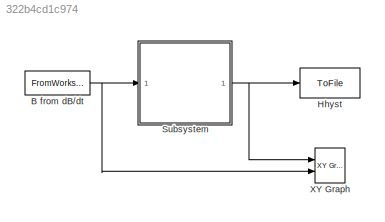
MODEL slx_322b4cd1c974
KIND model
CONFIG AbsTol = auto
CONFIG EnableMultiTasking = off
CONFIG FixedStep = step
CONFIG MaxStep = auto
CONFIG MinStep = auto
CONFIG RelTol = 1e-3
CONFIG SampleTimeConstraint = Unconstrained
CONFIG SolverName = FixedStepAuto
CONFIG StartTime = Tstart
CONFIG StopTime = Tsim
BLOCK [FromWorkspace] B from dB//dt 
  OutDataTypeStr = double
  VariableName = Binput
BLOCK [ToFile] Hhyst
  Filename = Hout.mat
  MatrixName = Hsim
  Ports = [1]
  SampleTime = 1
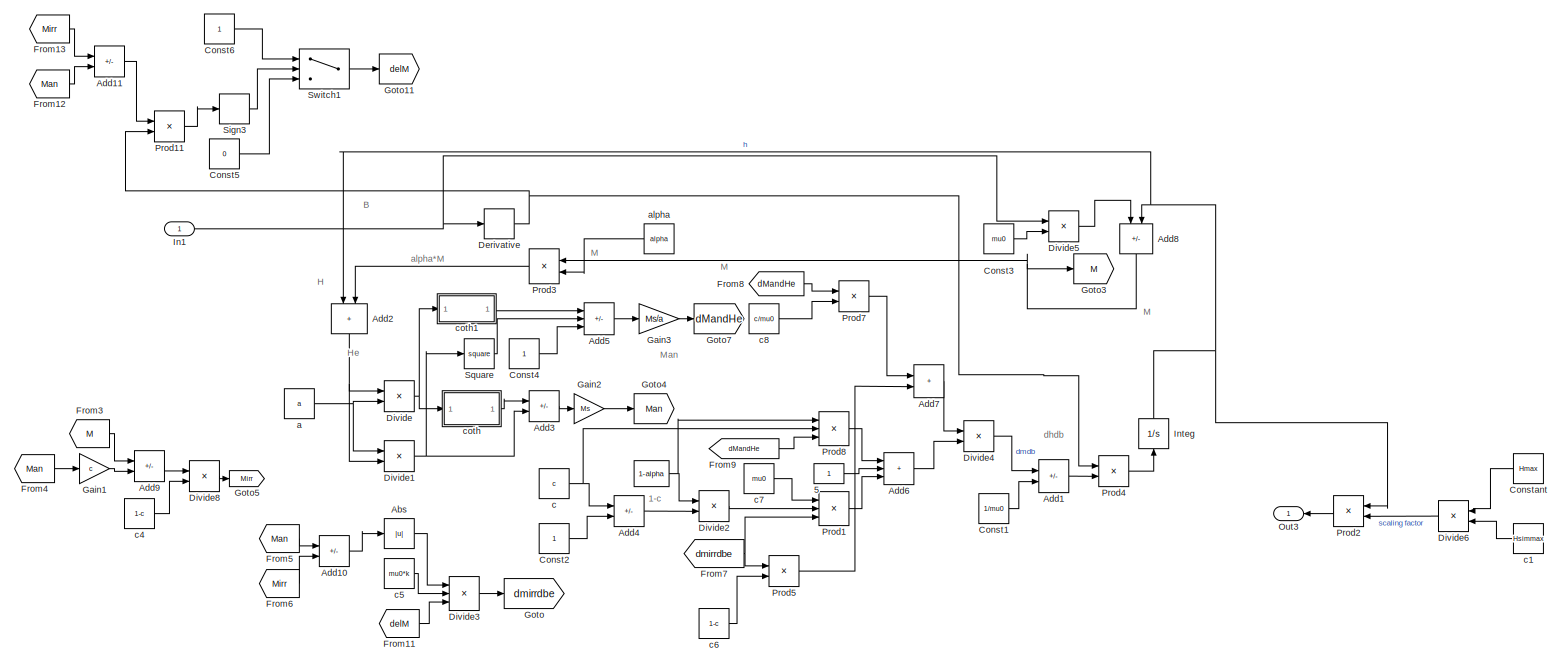
[diagram: Subsystem - part 1/1, most of the canvas]
BLOCK [SubSystem] Subsystem
  Ports = [1, 1]
  RequestExecContextInheritance = off
BLOCK [Constant] Subsystem/ 
  Value = 1-alpha
BLOCK [Constant] Subsystem/5
BLOCK [Abs] Subsystem/Abs
  SaturateOnIntegerOverflow = off
BLOCK [Sum] Subsystem/Add1
  IconShape = rectangular
  Inputs = -+
  Ports = [2, 1]
BLOCK [Sum] Subsystem/Add10
  IconShape = rectangular
  Inputs = +-
  Ports = [2, 1]
BLOCK [Sum] Subsystem/Add11
  IconShape = rectangular
  Inputs = -+
  Ports = [2, 1]
BLOCK [Sum] Subsystem/Add2
  IconShape = rectangular
  NameLocation = left
  Ports = [2, 1]
BLOCK [Sum] Subsystem/Add3
  IconShape = rectangular
  Inputs = +-
  Ports = [2, 1]
BLOCK [Sum] Subsystem/Add4
  IconShape = rectangular
  Inputs = -+
  Ports = [2, 1]
BLOCK [Sum] Subsystem/Add5
  IconShape = rectangular
  Inputs = -++
  Ports = [3, 1]
BLOCK [Sum] Subsystem/Add6
  IconShape = rectangular
  Inputs = +++
  Ports = [3, 1]
BLOCK [Sum] Subsystem/Add7
  IconShape = rectangular
  Ports = [2, 1]
BLOCK [Sum] Subsystem/Add8
  IconShape = rectangular
  Inputs = +-
  NameLocation = left
  Ports = [2, 1]
BLOCK [Sum] Subsystem/Add9
  IconShape = rectangular
  Inputs = +-
  Ports = [2, 1]
BLOCK [Constant] Subsystem/Const1
  Value = 1/mu0
BLOCK [Constant] Subsystem/Const2
BLOCK [Constant] Subsystem/Const3
  Value = mu0
BLOCK [Constant] Subsystem/Const4
BLOCK [Constant] Subsystem/Const5
  Value = 0
BLOCK [Constant] Subsystem/Const6
BLOCK [Constant] Subsystem/Constant
  NameLocation = top
  Value = Hmax
BLOCK [Derivative] Subsystem/Derivative
BLOCK [Product] Subsystem/Divide
  Inputs = */
  Ports = [2, 1]
BLOCK [Product] Subsystem/Divide1
  Inputs = */
  Ports = [2, 1]
BLOCK [Product] Subsystem/Divide2
  Inputs = **
  Ports = [2, 1]
BLOCK [Product] Subsystem/Divide3
  Inputs = */*
  Ports = [3, 1]
BLOCK [Product] Subsystem/Divide4
  Inputs = */
  Ports = [2, 1]
BLOCK [Product] Subsystem/Divide5
  Inputs = */
  Ports = [2, 1]
BLOCK [Product] Subsystem/Divide6
  Inputs = */
  NameLocation = top
  Ports = [2, 1]
BLOCK [Product] Subsystem/Divide8
  Inputs = */
  Ports = [2, 1]
BLOCK [From] Subsystem/From11
  GotoTag = delM
BLOCK [From] Subsystem/From12
  GotoTag = Man
BLOCK [From] Subsystem/From13
  GotoTag = Mirr
BLOCK [From] Subsystem/From3
  GotoTag = M
BLOCK [From] Subsystem/From4
  GotoTag = Man
BLOCK [From] Subsystem/From5
  GotoTag = Man
BLOCK [From] Subsystem/From6
  GotoTag = Mirr
BLOCK [From] Subsystem/From7
  GotoTag = dmirrdbe
BLOCK [From] Subsystem/From8
  GotoTag = dMandHe
BLOCK [From] Subsystem/From9
  GotoTag = dMandHe
BLOCK [Gain] Subsystem/Gain1
  Gain = c
BLOCK [Gain] Subsystem/Gain2
  Gain = Ms
BLOCK [Gain] Subsystem/Gain3
  Gain = Ms/a
BLOCK [Goto] Subsystem/Goto
  GotoTag = dmirrdbe
BLOCK [Goto] Subsystem/Goto11
  GotoTag = delM
BLOCK [Goto] Subsystem/Goto3
  GotoTag = M
BLOCK [Goto] Subsystem/Goto4
  GotoTag = Man
BLOCK [Goto] Subsystem/Goto5
  GotoTag = Mirr
BLOCK [Goto] Subsystem/Goto7
  GotoTag = dMandHe
BLOCK [Inport] Subsystem/In1
BLOCK [Integrator] Subsystem/Integ
  NameLocation = right
  Ports = [1, 1]
BLOCK [Outport] Subsystem/Out3
  NameLocation = top
BLOCK [Product] Subsystem/Prod1
  Inputs = 3
  Ports = [3, 1]
BLOCK [Product] Subsystem/Prod11
  Ports = [2, 1]
BLOCK [Product] Subsystem/Prod2
  NameLocation = top
  Ports = [2, 1]
BLOCK [Product] Subsystem/Prod3
  NameLocation = top
  Ports = [2, 1]
BLOCK [Product] Subsystem/Prod4
  Ports = [2, 1]
BLOCK [Product] Subsystem/Prod5
  Ports = [2, 1]
BLOCK [Product] Subsystem/Prod7
  Ports = [2, 1]
BLOCK [Product] Subsystem/Prod8
  Inputs = 3
  Ports = [3, 1]
BLOCK [Signum] Subsystem/Sign3
BLOCK [Math] Subsystem/Square
  Operator = square
  Ports = [1, 1]
BLOCK [Switch] Subsystem/Switch1
  InputSameDT = off
  SaturateOnIntegerOverflow = off
BLOCK [Constant] Subsystem/a
  Value = a
BLOCK [Constant] Subsystem/alpha
  NameLocation = top
  Value = alpha
BLOCK [Constant] Subsystem/c
  Value = c
BLOCK [Constant] Subsystem/c1
  NameLocation = top
  Value = Hsimmax
BLOCK [Constant] Subsystem/c4
  Value = 1-c
BLOCK [Constant] Subsystem/c5
  Value = mu0*k
BLOCK [Constant] Subsystem/c6
  Value = 1-c
BLOCK [Constant] Subsystem/c7
  Value = mu0
BLOCK [Constant] Subsystem/c8
  Value = c/mu0
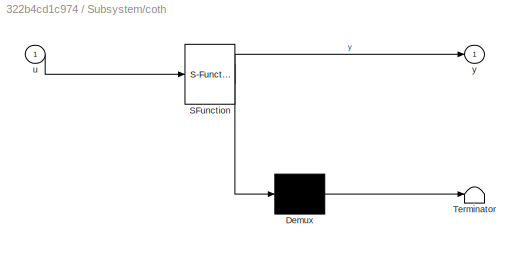
BLOCK [SubSystem] Subsystem/coth
  ErrorFcn = Stateflow.Translate.translate
  PermitHierarchicalResolution = ExplicitOnly
  Ports = [1, 1]
  RequestExecContextInheritance = off
  SFBlockType = MATLAB Function
  TreatAsAtomicUnit = on
BLOCK [Demux] Subsystem/coth/ Demux 
  Outputs = 1
  Ports = [1, 1]
BLOCK [S-Function] Subsystem/coth/ SFunction 
  EnableBusSupport = on
  FunctionName = sf_sfun
  PortCounts = [1 2]
  Ports = [1, 2]
  SFcnIsStateOwnerBlock = off
  SFunctionDeploymentMode = off
  Tag = Stateflow S-Function 2
BLOCK [Terminator] Subsystem/coth/ Terminator 
BLOCK [Inport] Subsystem/coth/u
BLOCK [Outport] Subsystem/coth/y
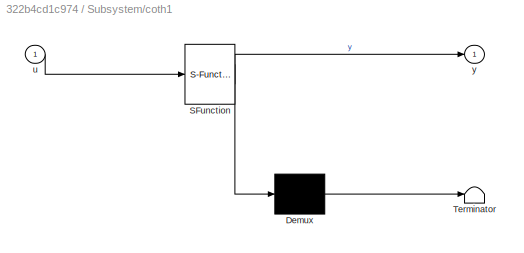
BLOCK [SubSystem] Subsystem/coth1
  ErrorFcn = Stateflow.Translate.translate
  PermitHierarchicalResolution = ExplicitOnly
  Ports = [1, 1]
  RequestExecContextInheritance = off
  SFBlockType = MATLAB Function
  TreatAsAtomicUnit = on
BLOCK [Demux] Subsystem/coth1/ Demux 
  Outputs = 1
  Ports = [1, 1]
BLOCK [S-Function] Subsystem/coth1/ SFunction 
  EnableBusSupport = on
  FunctionName = sf_sfun
  PortCounts = [1 2]
  Ports = [1, 2]
  SFcnIsStateOwnerBlock = off
  SFunctionDeploymentMode = off
  Tag = Stateflow S-Function 1
BLOCK [Terminator] Subsystem/coth1/ Terminator 
BLOCK [Inport] Subsystem/coth1/u
BLOCK [Outport] Subsystem/coth1/y
BLOCK [Reference] XY Graph  REF=simulink/Sinks/XY Graph
  Ports = [2]
  SourceBlock = simulink/Sinks/XY Graph
  SourceProductBaseCode = SL
  SourceType = XY scope.
ANNOTATION Subsystem: 1-c
ANNOTATION Subsystem: B
ANNOTATION Subsystem: H
ANNOTATION Subsystem: He
ANNOTATION Subsystem: M
ANNOTATION Subsystem: Man
ANNOTATION Subsystem: alpha*M
ANNOTATION Subsystem: dhdb
NET B from dB//dt :1 -> Subsystem:1, XY Graph:2
NET Subsystem/ :1 -> Subsystem/Divide2:1, Subsystem/Prod8:1
LINE Subsystem/5:1 -> Subsystem/Add6:2
LINE Subsystem/Abs:1 -> Subsystem/Divide3:1
LINE Subsystem/Add10:1 -> Subsystem/Abs:1
LINE Subsystem/Add11:1 -> Subsystem/Prod11:1
LINE Subsystem/Add1:1 -> Subsystem/Prod4:2
NET Subsystem/Add2:1 -> Subsystem/Divide1:2, Subsystem/Divide:1
LINE Subsystem/Add3:1 -> Subsystem/Gain2:1
LINE Subsystem/Add4:1 -> Subsystem/Divide2:2
LINE Subsystem/Add5:1 -> Subsystem/Gain3:1
LINE Subsystem/Add6:1 -> Subsystem/Divide4:2
LINE Subsystem/Add7:1 -> Subsystem/Divide4:1
NET Subsystem/Add8:1 -> Subsystem/Goto3:1, Subsystem/Prod3:1
LINE Subsystem/Add9:1 -> Subsystem/Divide8:1
LINE Subsystem/Const1:1 -> Subsystem/Add1:2
LINE Subsystem/Const2:1 -> Subsystem/Add4:2
LINE Subsystem/Const3:1 -> Subsystem/Divide5:2
LINE Subsystem/Const4:1 -> Subsystem/Add5:3
LINE Subsystem/Const5:1 -> Subsystem/Switch1:3
LINE Subsystem/Const6:1 -> Subsystem/Switch1:1
LINE Subsystem/Constant:1 -> Subsystem/Divide6:1
NET Subsystem/Derivative:1 -> Subsystem/Prod11:2, Subsystem/Prod4:1
NET Subsystem/Divide1:1 -> Subsystem/Add3:2, Subsystem/Square:1
LINE Subsystem/Divide2:1 -> Subsystem/Prod1:2
LINE Subsystem/Divide3:1 -> Subsystem/Goto:1
LINE Subsystem/Divide4:1 -> Subsystem/Add1:1
LINE Subsystem/Divide5:1 -> Subsystem/Add8:1
LINE Subsystem/Divide6:1 -> Subsystem/Prod2:2
LINE Subsystem/Divide8:1 -> Subsystem/Goto5:1
NET Subsystem/Divide:1 -> Subsystem/coth1:1, Subsystem/coth:1
LINE Subsystem/From11:1 -> Subsystem/Divide3:3
LINE Subsystem/From12:1 -> Subsystem/Add11:2
LINE Subsystem/From13:1 -> Subsystem/Add11:1
LINE Subsystem/From3:1 -> Subsystem/Add9:1
LINE Subsystem/From4:1 -> Subsystem/Gain1:1
LINE Subsystem/From5:1 -> Subsystem/Add10:1
LINE Subsystem/From6:1 -> Subsystem/Add10:2
NET Subsystem/From7:1 -> Subsystem/Prod1:3, Subsystem/Prod5:1
LINE Subsystem/From8:1 -> Subsystem/Prod7:1
LINE Subsystem/From9:1 -> Subsystem/Prod8:3
LINE Subsystem/Gain1:1 -> Subsystem/Add9:2
LINE Subsystem/Gain2:1 -> Subsystem/Goto4:1
LINE Subsystem/Gain3:1 -> Subsystem/Goto7:1
NET Subsystem/In1:1 -> Subsystem/Derivative:1, Subsystem/Divide5:1
NET Subsystem/Integ:1 -> Subsystem/Add2:1, Subsystem/Add8:2, Subsystem/Prod2:1
LINE Subsystem/Prod11:1 -> Subsystem/Sign3:1
LINE Subsystem/Prod1:1 -> Subsystem/Add6:3
LINE Subsystem/Prod2:1 -> Subsystem/Out3:1
LINE Subsystem/Prod3:1 -> Subsystem/Add2:2
LINE Subsystem/Prod4:1 -> Subsystem/Integ:1
LINE Subsystem/Prod5:1 -> Subsystem/Add7:2
LINE Subsystem/Prod7:1 -> Subsystem/Add7:1
LINE Subsystem/Prod8:1 -> Subsystem/Add6:1
LINE Subsystem/Sign3:1 -> Subsystem/Switch1:2
LINE Subsystem/Square:1 -> Subsystem/Add5:2
LINE Subsystem/Switch1:1 -> Subsystem/Goto11:1
NET Subsystem/a:1 -> Subsystem/Divide1:1, Subsystem/Divide:2
LINE Subsystem/alpha:1 -> Subsystem/Prod3:2
LINE Subsystem/c1:1 -> Subsystem/Divide6:2
LINE Subsystem/c4:1 -> Subsystem/Divide8:2
LINE Subsystem/c5:1 -> Subsystem/Divide3:2
LINE Subsystem/c6:1 -> Subsystem/Prod5:2
LINE Subsystem/c7:1 -> Subsystem/Prod1:1
LINE Subsystem/c8:1 -> Subsystem/Prod7:2
NET Subsystem/c:1 -> Subsystem/Add4:1, Subsystem/Prod8:2
LINE Subsystem/coth1:1 -> Subsystem/Add5:1
LINE Subsystem/coth:1 -> Subsystem/Add3:1
NET Subsystem:1 -> Hhyst:1, XY Graph:1
note: NET lines group one-source signal fan-out (src -> all destinations, sorted); 1:1 wires keep LINE
CHART Subsystem/coth states=1 transitions=1
  STATE_LABEL 'eML_blk_kernel()'
  STATE_LABEL 'SCRIPT:\nfunction y = cotan(u)\n\ny = coth(u);\n'
CHART Subsystem/coth1 states=1 transitions=1
  STATE_LABEL 'eML_blk_kernel()'
  STATE_LABEL 'SCRIPT:\nfunction y = cot2(u)\n\ny = coth(u)^2;\n'
CHART  states=0 transitions=0
CHART  states=0 transitions=0
